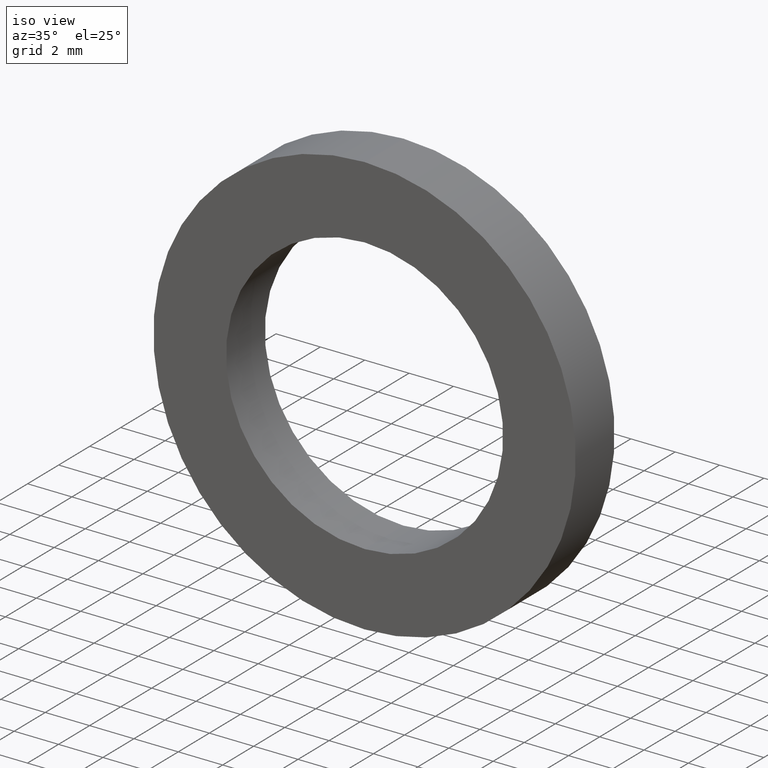
[diagram: clean part render]
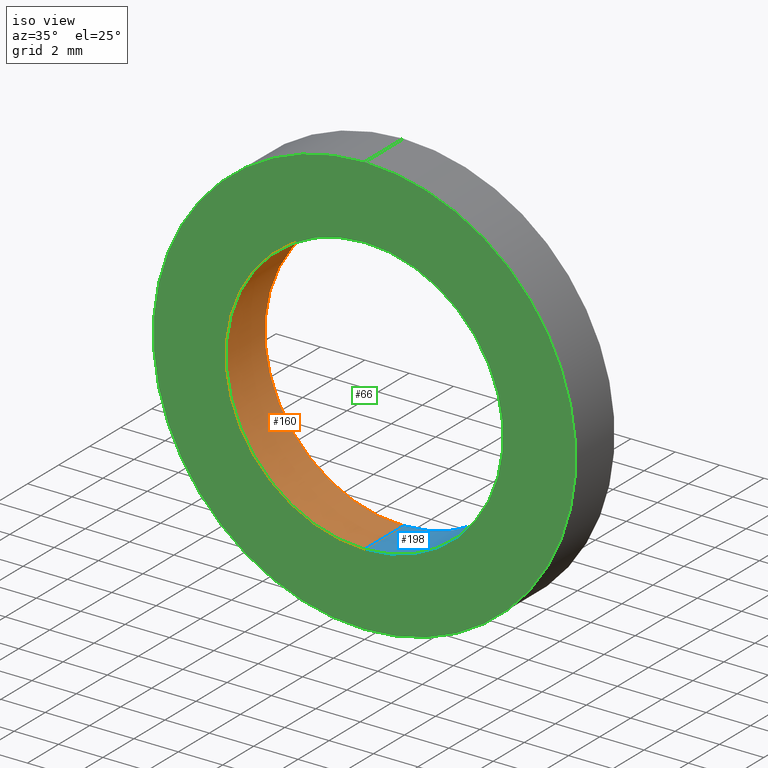
[diagram: same view with three faces highlighted in distinct colors, each labeled with its STEP entity id]
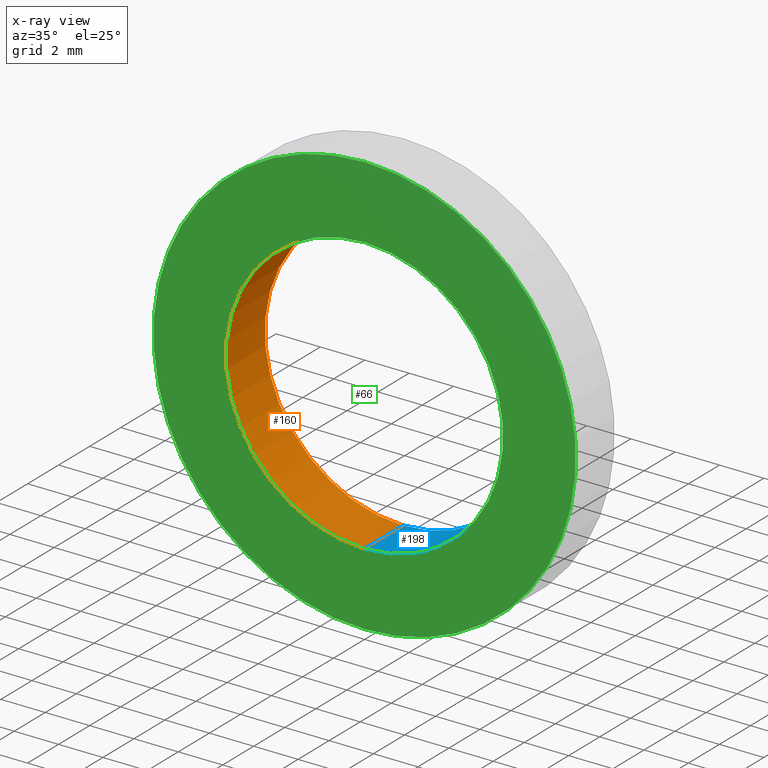
[diagram: x-ray of the same camera — body ghosted, the three highlighted faces saturated]
A machine part, iso view with three faces highlighted in distinct colors.
The next image is the same camera in x-ray (body ghosted, the three faces saturated) — at least one of them is partly hidden behind the body in this view.
Their STEP definitions:

[orange] entity #160 — the highlighted cylindrical surface (partial cylindrical patch) has radius 6.25 mm, axis along (-0, 1, -0).
#11 = AXIS2_PLACEMENT_3D ( 'NONE', #119, #29, #43 ) ;
#13 = CARTESIAN_POINT ( 'NONE',  ( 0.0000000000000000000, 77.14414226561778800, 6.250000000000008900 ) ) ;
#20 = EDGE_CURVE ( 'NONE', #207, #159, #94, .T. ) ;
#29 = DIRECTION ( 'NONE',  ( -0.0000000000000000000, 1.000000000000000000, -0.0000000000000000000 ) ) ;
#31 = VERTEX_POINT ( 'NONE', #179 ) ;
#36 = EDGE_CURVE ( 'NONE', #31, #226, #237, .T. ) ;
#39 = LINE ( 'NONE', #13, #230 ) ;
#43 = DIRECTION ( 'NONE',  ( 0.0000000000000000000, 0.0000000000000000000, 1.000000000000000000 ) ) ;
#50 = CARTESIAN_POINT ( 'NONE',  ( 7.654042494670968500E-016, 0.0000000000000000000, -6.250000000000008900 ) ) ;
#58 = FACE_OUTER_BOUND ( 'NONE', #150, .T. ) ;
#61 = EDGE_CURVE ( 'NONE', #159, #226, #39, .T. ) ;
#76 = ORIENTED_EDGE ( 'NONE', *, *, #229, .T. ) ;
#84 = DIRECTION ( 'NONE',  ( -0.0000000000000000000, 1.000000000000000000, -0.0000000000000000000 ) ) ;
#90 = CYLINDRICAL_SURFACE ( 'NONE', #191, 6.250000000000008900 ) ;
#94 = CIRCLE ( 'NONE', #243, 6.250000000000008900 ) ;
#104 = CARTESIAN_POINT ( 'NONE',  ( 0.0000000000000000000, 2.500000000000002200, 6.250000000000008900 ) ) ;
#105 = ORIENTED_EDGE ( 'NONE', *, *, #20, .F. ) ;
#119 = CARTESIAN_POINT ( 'NONE',  ( 0.0000000000000000000, 2.500000000000002200, 0.0000000000000000000 ) ) ;
#126 = CARTESIAN_POINT ( 'NONE',  ( 0.0000000000000000000, 77.14414226561778800, 0.0000000000000000000 ) ) ;
#128 = VECTOR ( 'NONE', #231, 1000.000000000000000 ) ;
#130 = CARTESIAN_POINT ( 'NONE',  ( 7.654042494670968500E-016, 77.14414226561778800, -6.250000000000008900 ) ) ;
#150 = EDGE_LOOP ( 'NONE', ( #105, #76, #193, #165 ) ) ;
#159 = VERTEX_POINT ( 'NONE', #206 ) ;
#160 = ADVANCED_FACE ( 'NONE', ( #58 ), #90, .F. ) ;
#163 = CARTESIAN_POINT ( 'NONE',  ( 0.0000000000000000000, 0.0000000000000000000, 0.0000000000000000000 ) ) ;
#165 = ORIENTED_EDGE ( 'NONE', *, *, #61, .F. ) ;
#177 = DIRECTION ( 'NONE',  ( 0.0000000000000000000, 0.0000000000000000000, 1.000000000000000000 ) ) ;
#179 = CARTESIAN_POINT ( 'NONE',  ( 7.654042494670968500E-016, 2.500000000000002200, -6.250000000000008900 ) ) ;
#189 = DIRECTION ( 'NONE',  ( -0.0000000000000000000, 1.000000000000000000, -0.0000000000000000000 ) ) ;
#191 = AXIS2_PLACEMENT_3D ( 'NONE', #126, #189, #220 ) ;
#193 = ORIENTED_EDGE ( 'NONE', *, *, #36, .T. ) ;
#206 = CARTESIAN_POINT ( 'NONE',  ( 0.0000000000000000000, 0.0000000000000000000, 6.250000000000008900 ) ) ;
#207 = VERTEX_POINT ( 'NONE', #50 ) ;
#210 = LINE ( 'NONE', #130, #128 ) ;
#217 = DIRECTION ( 'NONE',  ( -0.0000000000000000000, 1.000000000000000000, -0.0000000000000000000 ) ) ;
#220 = DIRECTION ( 'NONE',  ( 0.0000000000000000000, 0.0000000000000000000, 1.000000000000000000 ) ) ;
#226 = VERTEX_POINT ( 'NONE', #104 ) ;
#229 = EDGE_CURVE ( 'NONE', #207, #31, #210, .T. ) ;
#230 = VECTOR ( 'NONE', #217, 1000.000000000000000 ) ;
#231 = DIRECTION ( 'NONE',  ( -0.0000000000000000000, 1.000000000000000000, -0.0000000000000000000 ) ) ;
#237 = CIRCLE ( 'NONE', #11, 6.250000000000008900 ) ;
#243 = AXIS2_PLACEMENT_3D ( 'NONE', #163, #84, #177 ) ;

[blue] entity #198 — the highlighted cylindrical surface (partial cylindrical patch) has radius 6.25 mm, axis along (-0, 1, -0).
#2 = CARTESIAN_POINT ( 'NONE',  ( 0.0000000000000000000, 77.14414226561778800, 0.0000000000000000000 ) ) ;
#13 = CARTESIAN_POINT ( 'NONE',  ( 0.0000000000000000000, 77.14414226561778800, 6.250000000000008900 ) ) ;
#19 = DIRECTION ( 'NONE',  ( -0.0000000000000000000, 1.000000000000000000, -0.0000000000000000000 ) ) ;
#21 = ORIENTED_EDGE ( 'NONE', *, *, #229, .F. ) ;
#28 = CIRCLE ( 'NONE', #215, 6.250000000000008900 ) ;
#30 = DIRECTION ( 'NONE',  ( 0.0000000000000000000, 0.0000000000000000000, 1.000000000000000000 ) ) ;
#31 = VERTEX_POINT ( 'NONE', #179 ) ;
#34 = DIRECTION ( 'NONE',  ( 0.0000000000000000000, 0.0000000000000000000, 1.000000000000000000 ) ) ;
#39 = LINE ( 'NONE', #13, #230 ) ;
#48 = DIRECTION ( 'NONE',  ( 0.0000000000000000000, 0.0000000000000000000, 1.000000000000000000 ) ) ;
#50 = CARTESIAN_POINT ( 'NONE',  ( 7.654042494670968500E-016, 0.0000000000000000000, -6.250000000000008900 ) ) ;
#55 = AXIS2_PLACEMENT_3D ( 'NONE', #2, #19, #34 ) ;
#56 = EDGE_LOOP ( 'NONE', ( #21, #116, #197, #124 ) ) ;
#61 = EDGE_CURVE ( 'NONE', #159, #226, #39, .T. ) ;
#95 = CIRCLE ( 'NONE', #138, 6.250000000000008900 ) ;
#104 = CARTESIAN_POINT ( 'NONE',  ( 0.0000000000000000000, 2.500000000000002200, 6.250000000000008900 ) ) ;
#116 = ORIENTED_EDGE ( 'NONE', *, *, #133, .F. ) ;
#120 = CARTESIAN_POINT ( 'NONE',  ( 0.0000000000000000000, 2.500000000000002200, 0.0000000000000000000 ) ) ;
#124 = ORIENTED_EDGE ( 'NONE', *, *, #145, .T. ) ;
#128 = VECTOR ( 'NONE', #231, 1000.000000000000000 ) ;
#130 = CARTESIAN_POINT ( 'NONE',  ( 7.654042494670968500E-016, 77.14414226561778800, -6.250000000000008900 ) ) ;
#133 = EDGE_CURVE ( 'NONE', #159, #207, #95, .T. ) ;
#138 = AXIS2_PLACEMENT_3D ( 'NONE', #214, #142, #30 ) ;
#139 = DIRECTION ( 'NONE',  ( -0.0000000000000000000, 1.000000000000000000, -0.0000000000000000000 ) ) ;
#142 = DIRECTION ( 'NONE',  ( -0.0000000000000000000, 1.000000000000000000, -0.0000000000000000000 ) ) ;
#145 = EDGE_CURVE ( 'NONE', #226, #31, #28, .T. ) ;
#154 = CYLINDRICAL_SURFACE ( 'NONE', #55, 6.250000000000008900 ) ;
#159 = VERTEX_POINT ( 'NONE', #206 ) ;
#179 = CARTESIAN_POINT ( 'NONE',  ( 7.654042494670968500E-016, 2.500000000000002200, -6.250000000000008900 ) ) ;
#180 = FACE_OUTER_BOUND ( 'NONE', #56, .T. ) ;
#197 = ORIENTED_EDGE ( 'NONE', *, *, #61, .T. ) ;
#198 = ADVANCED_FACE ( 'NONE', ( #180 ), #154, .F. ) ;
#206 = CARTESIAN_POINT ( 'NONE',  ( 0.0000000000000000000, 0.0000000000000000000, 6.250000000000008900 ) ) ;
#207 = VERTEX_POINT ( 'NONE', #50 ) ;
#210 = LINE ( 'NONE', #130, #128 ) ;
#214 = CARTESIAN_POINT ( 'NONE',  ( 0.0000000000000000000, 0.0000000000000000000, 0.0000000000000000000 ) ) ;
#215 = AXIS2_PLACEMENT_3D ( 'NONE', #120, #139, #48 ) ;
#217 = DIRECTION ( 'NONE',  ( -0.0000000000000000000, 1.000000000000000000, -0.0000000000000000000 ) ) ;
#226 = VERTEX_POINT ( 'NONE', #104 ) ;
#229 = EDGE_CURVE ( 'NONE', #207, #31, #210, .T. ) ;
#230 = VECTOR ( 'NONE', #217, 1000.000000000000000 ) ;
#231 = DIRECTION ( 'NONE',  ( -0.0000000000000000000, 1.000000000000000000, -0.0000000000000000000 ) ) ;

[green] entity #66 — the highlighted planar face has unit normal (-0, 1, 0).
#1 = DIRECTION ( 'NONE',  ( 0.0000000000000000000, 0.0000000000000000000, 1.000000000000000000 ) ) ;
#9 = VERTEX_POINT ( 'NONE', #234 ) ;
#12 = VERTEX_POINT ( 'NONE', #137 ) ;
#17 = DIRECTION ( 'NONE',  ( -0.0000000000000000000, 1.000000000000000000, 0.0000000000000000000 ) ) ;
#20 = EDGE_CURVE ( 'NONE', #207, #159, #94, .T. ) ;
#27 = ORIENTED_EDGE ( 'NONE', *, *, #149, .F. ) ;
#30 = DIRECTION ( 'NONE',  ( 0.0000000000000000000, 0.0000000000000000000, 1.000000000000000000 ) ) ;
#35 = DIRECTION ( 'NONE',  ( -0.0000000000000000000, 1.000000000000000000, -0.0000000000000000000 ) ) ;
#41 = AXIS2_PLACEMENT_3D ( 'NONE', #240, #17, #123 ) ;
#50 = CARTESIAN_POINT ( 'NONE',  ( 7.654042494670968500E-016, 0.0000000000000000000, -6.250000000000008900 ) ) ;
#60 = ORIENTED_EDGE ( 'NONE', *, *, #20, .T. ) ;
#63 = EDGE_LOOP ( 'NONE', ( #27, #82 ) ) ;
#66 = ADVANCED_FACE ( 'NONE', ( #227, #113 ), #67, .F. ) ;
#67 = PLANE ( 'NONE',  #41 ) ;
#71 = CIRCLE ( 'NONE', #228, 9.525000000000009200 ) ;
#82 = ORIENTED_EDGE ( 'NONE', *, *, #178, .F. ) ;
#84 = DIRECTION ( 'NONE',  ( -0.0000000000000000000, 1.000000000000000000, -0.0000000000000000000 ) ) ;
#94 = CIRCLE ( 'NONE', #243, 6.250000000000008900 ) ;
#95 = CIRCLE ( 'NONE', #138, 6.250000000000008900 ) ;
#108 = DIRECTION ( 'NONE',  ( 0.0000000000000000000, 0.0000000000000000000, 1.000000000000000000 ) ) ;
#113 = FACE_BOUND ( 'NONE', #233, .T. ) ;
#121 = DIRECTION ( 'NONE',  ( -0.0000000000000000000, 1.000000000000000000, -0.0000000000000000000 ) ) ;
#123 = DIRECTION ( 'NONE',  ( 0.0000000000000000000, 0.0000000000000000000, 1.000000000000000000 ) ) ;
#133 = EDGE_CURVE ( 'NONE', #159, #207, #95, .T. ) ;
#137 = CARTESIAN_POINT ( 'NONE',  ( 0.0000000000000000000, 0.0000000000000000000, 9.525000000000009200 ) ) ;
#138 = AXIS2_PLACEMENT_3D ( 'NONE', #214, #142, #30 ) ;
#140 = ORIENTED_EDGE ( 'NONE', *, *, #133, .T. ) ;
#142 = DIRECTION ( 'NONE',  ( -0.0000000000000000000, 1.000000000000000000, -0.0000000000000000000 ) ) ;
#143 = CIRCLE ( 'NONE', #205, 9.525000000000009200 ) ;
#149 = EDGE_CURVE ( 'NONE', #12, #9, #143, .T. ) ;
#159 = VERTEX_POINT ( 'NONE', #206 ) ;
#163 = CARTESIAN_POINT ( 'NONE',  ( 0.0000000000000000000, 0.0000000000000000000, 0.0000000000000000000 ) ) ;
#166 = CARTESIAN_POINT ( 'NONE',  ( 0.0000000000000000000, 0.0000000000000000000, 0.0000000000000000000 ) ) ;
#177 = DIRECTION ( 'NONE',  ( 0.0000000000000000000, 0.0000000000000000000, 1.000000000000000000 ) ) ;
#178 = EDGE_CURVE ( 'NONE', #9, #12, #71, .T. ) ;
#188 = CARTESIAN_POINT ( 'NONE',  ( 0.0000000000000000000, 0.0000000000000000000, 0.0000000000000000000 ) ) ;
#205 = AXIS2_PLACEMENT_3D ( 'NONE', #166, #121, #108 ) ;
#206 = CARTESIAN_POINT ( 'NONE',  ( 0.0000000000000000000, 0.0000000000000000000, 6.250000000000008900 ) ) ;
#207 = VERTEX_POINT ( 'NONE', #50 ) ;
#214 = CARTESIAN_POINT ( 'NONE',  ( 0.0000000000000000000, 0.0000000000000000000, 0.0000000000000000000 ) ) ;
#227 = FACE_OUTER_BOUND ( 'NONE', #63, .T. ) ;
#228 = AXIS2_PLACEMENT_3D ( 'NONE', #188, #35, #1 ) ;
#233 = EDGE_LOOP ( 'NONE', ( #140, #60 ) ) ;
#234 = CARTESIAN_POINT ( 'NONE',  ( 1.166476076187855000E-015, 0.0000000000000000000, -9.525000000000009200 ) ) ;
#240 = CARTESIAN_POINT ( 'NONE',  ( 6.250000000000008900, 0.0000000000000000000, 0.0000000000000000000 ) ) ;
#243 = AXIS2_PLACEMENT_3D ( 'NONE', #163, #84, #177 ) ;